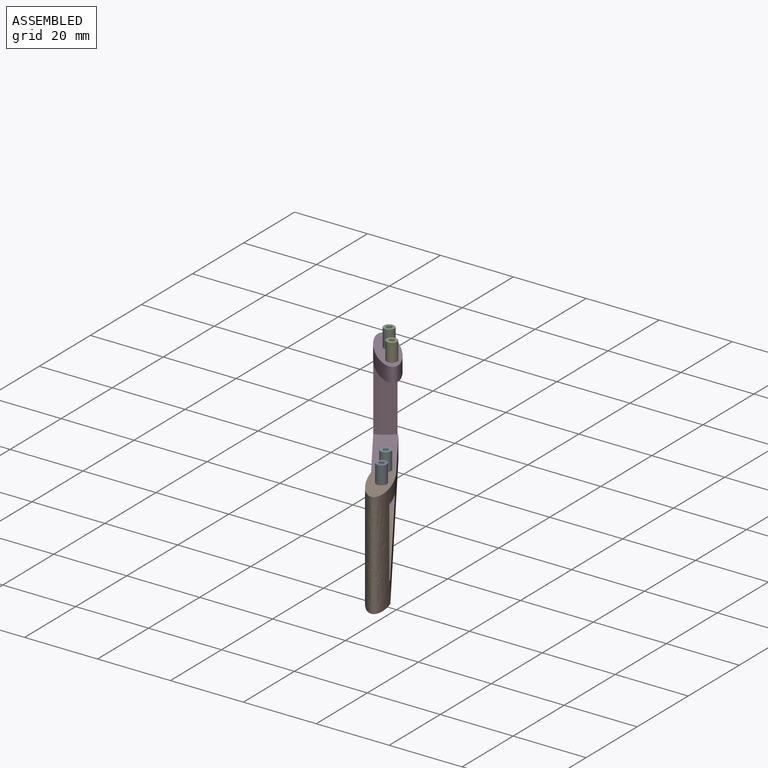
[diagram: assembled view]
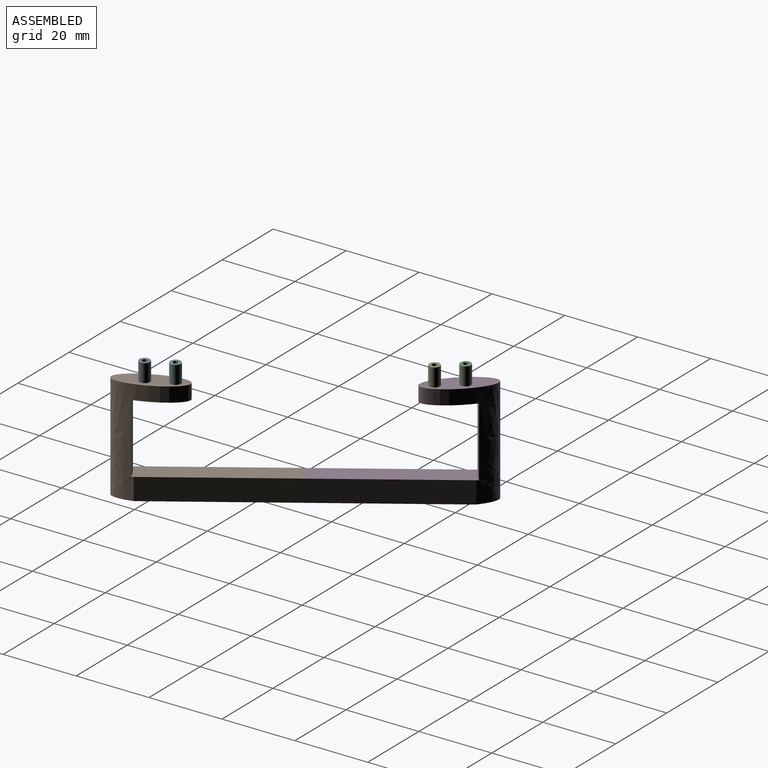
[diagram: assembled view, second angle]
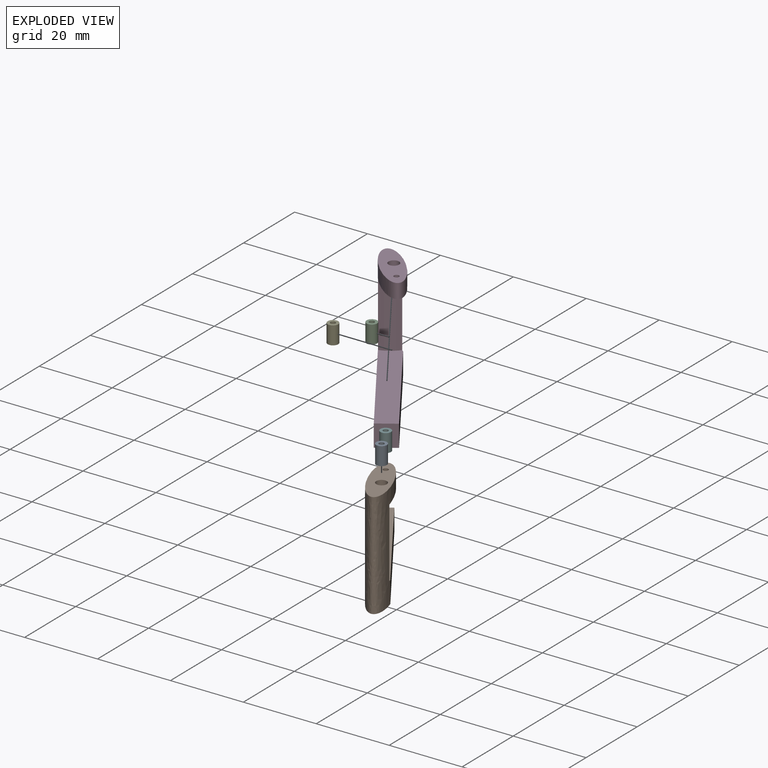
[diagram: exploded view]
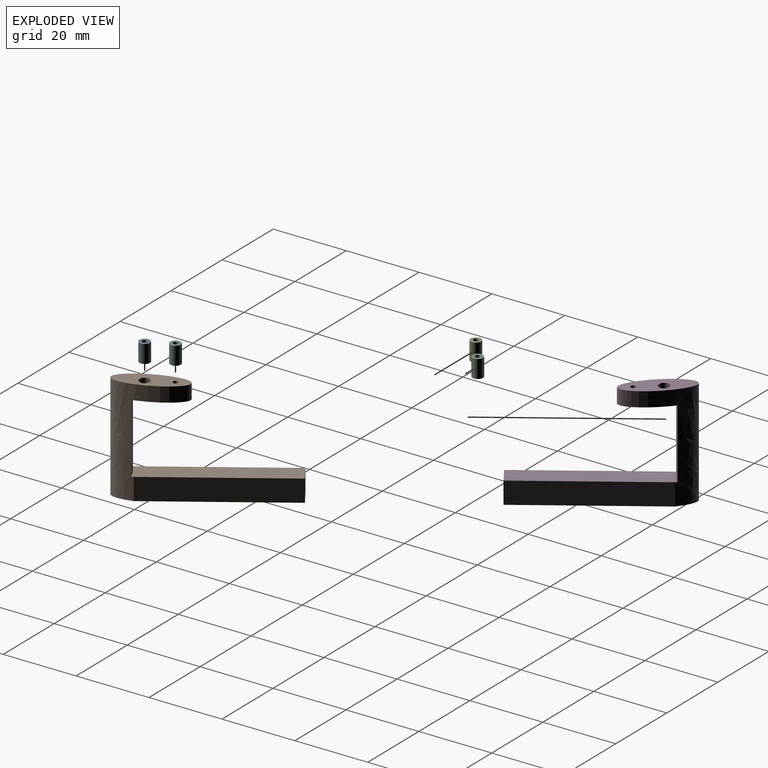
[diagram: exploded view, second angle]
ASSEMBLY  parts=6 mates=3
PART A: 4 faces, bbox 2.9x2.9x5 mm
  f0: cylinder r=1.45mm len=4.95mm, axis (0,0,1), area 45.1mm2, adj f2,f3
  f1: cylinder r=0.7mm len=4.95mm, axis (0,0,1), area 21.8mm2, adj f2,f3
  f2: plane 2.9x2.9mm, normal (0,0,-1), area 5.1mm2, adj f0,f1
  f3: plane 2.9x2.9mm, normal (0,0,1), area 5.1mm2, adj f0,f1
PART B: 11 faces, bbox 27.8x37.8x29 mm
  f0: plane 37.84x27.81mm, normal (0,0,1), area 240.3mm2, adj f2,f8,f9,f10
  f1: plane 35.61x26.37mm, normal (0,0,-1), area 220.6mm2, adj f2,f7,f8,f9,f10
  f2: extruded ~29x14.19mm, area 463.5mm2, adj f0,f1,f3,f5,f7,f8,f9
  f3: plane 12.02x11.99mm, normal (0,0,1), area 62.3mm2, adj f2,f4,f6,f7
  f4: cylinder r=1.45mm len=4mm, axis (0,0,-1), area 36.4mm2, adj f3,f5
  f5: plane 14.25x13.43mm, normal (0,0,-1), area 82.1mm2, adj f2,f4,f6
  f6: cylinder r=0.7mm len=4mm, axis (0,0,-1), area 17.6mm2, adj f3,f5
  f7: cylinder r=9.9mm len=19mm, axis (0,0,-1), area 105.1mm2, adj f1,f2,f3
  f8: plane 32.05x21.33mm, normal (0.83,0.55,0), area 231mm2, adj f0,f1,f2,f10
  f9: plane 32.05x21.33mm, normal (-0.83,-0.55,0), area 231mm2, adj f0,f1,f2,f10
  f10: plane 6x4.73mm, normal (0.55,-0.83,0), area 34.1mm2, adj f0,f1,f8,f9
PART C: same geometry as A
PART D: 11 faces, bbox 27.8x37.8x29 mm
  f0: plane 37.84x27.81mm, normal (0,0,-1), area 240.3mm2, adj f2,f8,f9,f10
  f1: plane 35.61x26.37mm, normal (0,0,1), area 220.6mm2, adj f2,f7,f8,f9,f10
  f2: extruded ~29x14.19mm, area 463.5mm2, adj f0,f1,f3,f5,f7,f8,f9
  f3: plane 12.02x11.99mm, normal (0,0,-1), area 62.3mm2, adj f2,f4,f6,f7
  f4: cylinder r=1.45mm len=4mm, axis (0,0,1), area 36.4mm2, adj f3,f5
  f5: plane 14.25x13.43mm, normal (0,0,1), area 82.1mm2, adj f2,f4,f6
  f6: cylinder r=0.7mm len=4mm, axis (0,0,1), area 17.6mm2, adj f3,f5
  f7: cylinder r=9.9mm len=19mm, axis (0,0,1), area 105.1mm2, adj f1,f2,f3
  f8: plane 32.05x21.33mm, normal (0.83,0.55,0), area 231mm2, adj f0,f1,f2,f10
  f9: plane 32.05x21.33mm, normal (-0.83,-0.55,0), area 231mm2, adj f0,f1,f2,f10
  f10: plane 6x4.73mm, normal (0.55,-0.83,0), area 34.1mm2, adj f0,f1,f8,f9
PART E: 4 faces, bbox 2.9x2.9x5 mm
  f0: cylinder r=0.7mm len=4.95mm, axis (0,0,1), area 21.8mm2, adj f2,f3
  f1: cylinder r=1.45mm len=4.95mm, axis (0,0,1), area 45.1mm2, adj f2,f3
  f2: plane 2.9x2.9mm, normal (0,0,-1), area 5.1mm2, adj f0,f1
  f3: plane 2.9x2.9mm, normal (0,0,1), area 5.1mm2, adj f0,f1
PART F: same geometry as E
PLACE A rot(axis=(0,0,-1),22.7deg) t=(39.66,-61.61,0)mm
PLACE B rot(axis=(-0.83,-0.55,0),180deg) t=(37.49,-56.33,0)mm
PLACE C at identity
PLACE D at identity
PLACE E at identity
PLACE F rot(axis=(0,0,-1),22.7deg) t=(34.37,-48.71,0)mm
MATE revolute B.f10 <-> D.f10  axis (-0.55,0.83,0) through (15.27,-30.48,-30.95)mm
MATE fastened A.f0 <-> B.f4  axis (0,0,-1) through (35.93,-60.05,-4.95)mm
MATE fastened F.f0 <-> B.f6  axis (0,0,-1) through (32.72,-53.83,-4.95)mm
